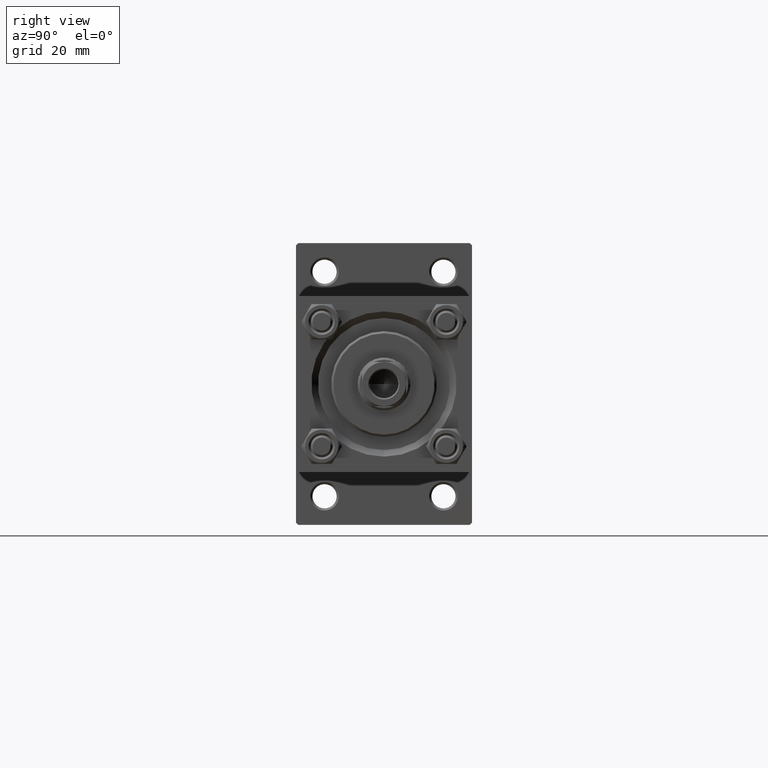
[diagram: clean part render]
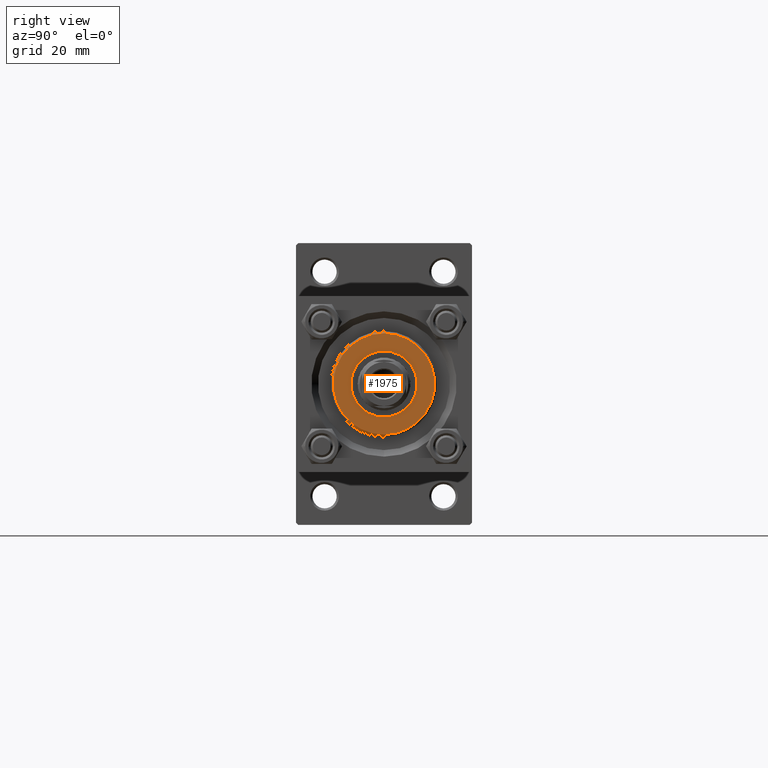
[diagram: same view with one face highlighted and labeled with its STEP entity id]
A machine part, right view. The second image highlights one B-rep face of the part: STEP entity #1975.
In plain terms, the highlighted planar face has unit normal (1, 0, 0).
Its self-contained STEP definition (entity closure, byte-faithful):
#1812 = DIRECTION ( 'NONE',  ( 1.000000000000000000, 0.000000000000000000, -0.000000000000000000 ) ) ;
#1975 = ADVANCED_FACE ( 'NONE', ( #48264, #13674 ), #32359, .T. ) ;
#2087 = DIRECTION ( 'NONE',  ( 1.000000000000000000, 0.000000000000000000, 0.000000000000000000 ) ) ;
#4017 = DIRECTION ( 'NONE',  ( 0.000000000000000000, 0.000000000000000000, 1.000000000000000000 ) ) ;
#5340 = CARTESIAN_POINT ( 'NONE',  ( 0.000000000000000000, 0.000000000000000000, 35.70000000000000284 ) ) ;
#7482 = VERTEX_POINT ( 'NONE', #37653 ) ;
#13674 = FACE_OUTER_BOUND ( 'NONE', #45398, .T. ) ;
#13879 = CIRCLE ( 'NONE', #32428, 7.500000000000000888 ) ;
#15405 = VERTEX_POINT ( 'NONE', #29493 ) ;
#18485 = CARTESIAN_POINT ( 'NONE',  ( -11.49999999999999645, 0.000000000000000000, 35.70000000000000284 ) ) ;
#18947 = CARTESIAN_POINT ( 'NONE',  ( 0.000000000000000000, 0.000000000000000000, 35.70000000000000284 ) ) ;
#19105 = CARTESIAN_POINT ( 'NONE',  ( 7.500000000000000888, 0.000000000000000000, 35.70000000000000284 ) ) ;
#19305 = AXIS2_PLACEMENT_3D ( 'NONE', #5340, #25042, #1812 ) ;
#19421 = VERTEX_POINT ( 'NONE', #18485 ) ;
#20479 = ORIENTED_EDGE ( 'NONE', *, *, #38505, .T. ) ;
#21348 = CIRCLE ( 'NONE', #46365, 7.500000000000000888 ) ;
#22846 = EDGE_LOOP ( 'NONE', ( #43536, #39987 ) ) ;
#23068 = DIRECTION ( 'NONE',  ( 1.000000000000000000, 0.000000000000000000, 0.000000000000000000 ) ) ;
#24113 = CIRCLE ( 'NONE', #48295, 11.49999999999999645 ) ;
#24701 = EDGE_CURVE ( 'NONE', #29488, #15405, #21348, .T. ) ;
#25042 = DIRECTION ( 'NONE',  ( 0.000000000000000000, 0.000000000000000000, 1.000000000000000000 ) ) ;
#29488 = VERTEX_POINT ( 'NONE', #19105 ) ;
#29493 = CARTESIAN_POINT ( 'NONE',  ( -7.500000000000000888, 9.184850993605149917E-16, 35.70000000000000284 ) ) ;
#29891 = CARTESIAN_POINT ( 'NONE',  ( 0.000000000000000000, 0.000000000000000000, 35.70000000000000284 ) ) ;
#30456 = DIRECTION ( 'NONE',  ( 1.000000000000000000, 0.000000000000000000, 0.000000000000000000 ) ) ;
#31457 = CIRCLE ( 'NONE', #44394, 11.49999999999999645 ) ;
#32359 = PLANE ( 'NONE',  #19305 ) ;
#32428 = AXIS2_PLACEMENT_3D ( 'NONE', #18947, #4017, #45461 ) ;
#34225 = EDGE_CURVE ( 'NONE', #7482, #19421, #24113, .T. ) ;
#34260 = DIRECTION ( 'NONE',  ( 0.000000000000000000, 0.000000000000000000, 1.000000000000000000 ) ) ;
#36683 = DIRECTION ( 'NONE',  ( 0.000000000000000000, 0.000000000000000000, 1.000000000000000000 ) ) ;
#37653 = CARTESIAN_POINT ( 'NONE',  ( 11.49999999999999645, 1.438959988998139963E-15, 35.70000000000000284 ) ) ;
#38047 = CARTESIAN_POINT ( 'NONE',  ( 0.000000000000000000, 0.000000000000000000, 35.70000000000000284 ) ) ;
#38505 = EDGE_CURVE ( 'NONE', #19421, #7482, #31457, .T. ) ;
#39969 = CARTESIAN_POINT ( 'NONE',  ( 0.000000000000000000, 0.000000000000000000, 35.70000000000000284 ) ) ;
#39987 = ORIENTED_EDGE ( 'NONE', *, *, #42779, .F. ) ;
#41515 = DIRECTION ( 'NONE',  ( 0.000000000000000000, 0.000000000000000000, 1.000000000000000000 ) ) ;
#42779 = EDGE_CURVE ( 'NONE', #15405, #29488, #13879, .T. ) ;
#43536 = ORIENTED_EDGE ( 'NONE', *, *, #24701, .F. ) ;
#44394 = AXIS2_PLACEMENT_3D ( 'NONE', #29891, #41515, #23068 ) ;
#45398 = EDGE_LOOP ( 'NONE', ( #20479, #47944 ) ) ;
#45461 = DIRECTION ( 'NONE',  ( 1.000000000000000000, 0.000000000000000000, 0.000000000000000000 ) ) ;
#46365 = AXIS2_PLACEMENT_3D ( 'NONE', #38047, #34260, #30456 ) ;
#47944 = ORIENTED_EDGE ( 'NONE', *, *, #34225, .T. ) ;
#48264 = FACE_BOUND ( 'NONE', #22846, .T. ) ;
#48295 = AXIS2_PLACEMENT_3D ( 'NONE', #39969, #36683, #2087 ) ;